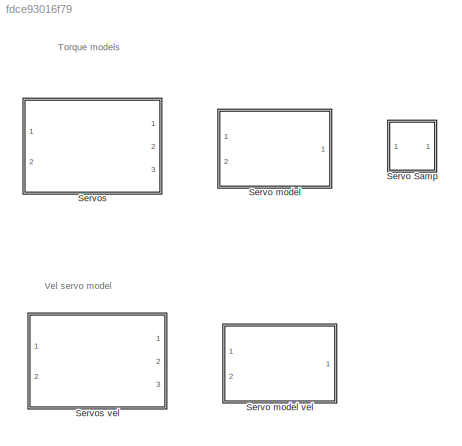
MODEL slx_fdce93016f79
KIND library
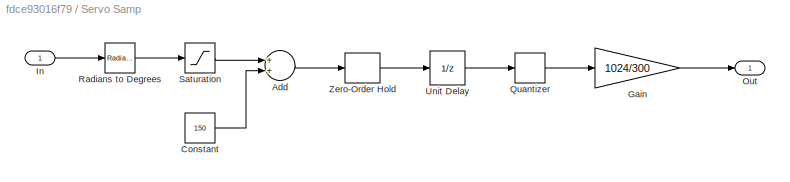
BLOCK [SubSystem] Servo Samp
  Ports = [1, 1]
  RequestExecContextInheritance = off
BLOCK [Sum] Servo Samp/Add
  InputSameDT = off
  OutDataTypeStr = Inherit: Inherit via internal rule
  Ports = [2, 1]
  SaturateOnIntegerOverflow = off
BLOCK [Constant] Servo Samp/Constant
  SampleTime = 0.001
  Value = 150
BLOCK [Gain] Servo Samp/Gain
  Gain = 1024/300
  OutDataTypeStr = Inherit: Inherit via internal rule
  ParamDataTypeStr = Inherit: Inherit via internal rule
  SaturateOnIntegerOverflow = off
BLOCK [Inport] Servo Samp/In
  IconDisplay = Port number
BLOCK [Outport] Servo Samp/Out
  IconDisplay = Port number
BLOCK [Quantizer] Servo Samp/Quantizer
  QuantizationInterval = 300/1024
BLOCK [Reference] Servo Samp/Radians to Degrees  REF=simulink_extras/Transformations/Radians
to Degrees
  Ports = [1, 1]
  SourceBlock = simulink_extras/Transformations/Radians\nto Degrees
  SourceType = RadiansToDegrees
BLOCK [Saturate] Servo Samp/Saturation
  InputPortMap = u0
  LowerLimit = -150
  Ports = [1, 1]
  UpperLimit = 150
BLOCK [UnitDelay] Servo Samp/Unit Delay
  InitialCondition = 150
  InputProcessing = Elements as channels (sample based)
  SampleTime = -1
BLOCK [ZeroOrderHold] Servo Samp/Zero-Order Hold
  SampleTime = 0.001
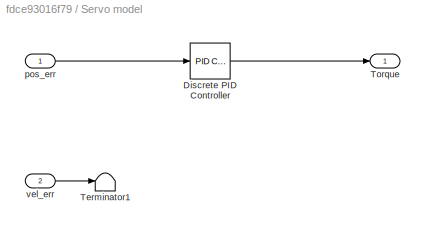
BLOCK [SubSystem] Servo model
  Ports = [2, 1]
  RequestExecContextInheritance = off
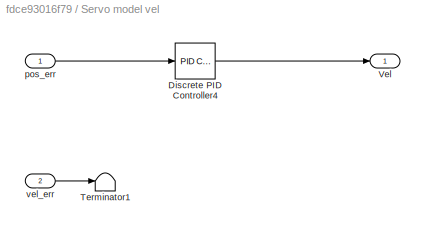
BLOCK [SubSystem] Servo model vel
  Ports = [2, 1]
  RequestExecContextInheritance = off
BLOCK [Reference] Servo model vel/Discrete PID Controller4  REF=simulink/Continuous/PID Controller
  AntiWindupMode = clamping
  Controller = PID
  D = D
  DOutDataTypeStr = Inherit: Inherit via internal rule
  DOutMax = []
  DOutMin = []
  DParamDataTypeStr = Inherit: Inherit via internal rule
  DParamMax = []
  DParamMin = []
  DifferentiatorICPrevScaledInput = 0
  DifferentiatorOutDataTypeStr = Inherit: Inherit via internal rule
  DifferentiatorOutMax = []
  DifferentiatorOutMin = []
  ExternalReset = none
  FilterContinuousStateAttributes = ''
  FilterMethod = Forward Euler
  FilterOutDataTypeStr = Inherit: Inherit via internal rule
  FilterOutMax = []
  FilterOutMin = []
  FilterRTWStateStorageClass = Auto
  FilterStateMustResolveToSignalObject = off
  Form = Parallel
  I = I
  IOutDataTypeStr = Inherit: Inherit via internal rule
  IOutMax = []
  IOutMin = []
  IParamDataTypeStr = Inherit: Inherit via internal rule
  IParamMax = []
  IParamMin = []
  IgnoreLimit = on
  InitialConditionForFilter = 0
  InitialConditionForIntegrator = 0
  InitialConditionSource = internal
  IntegratorContinuousStateAttributes = ''
  IntegratorMethod = Forward Euler
  IntegratorOutDataTypeStr = Inherit: Inherit via internal rule
  IntegratorOutMax = []
  IntegratorOutMin = []
  IntegratorRTWStateStorageClass = Auto
  IntegratorStateMustResolveToSignalObject = off
  Kb = 1
  KbOutDataTypeStr = Inherit: Inherit via internal rule
  KbOutMax = []
  KbOutMin = []
  KbParamDataTypeStr = Inherit: Inherit via internal rule
  KbParamMax = []
  KbParamMin = []
  Kt = 1
  KtOutDataTypeStr = Inherit: Inherit via internal rule
  KtOutMax = []
  KtOutMin = []
  KtParamDataTypeStr = Inherit: Inherit via internal rule
  KtParamMax = []
  KtParamMin = []
  LimitOutput = on
  LinearizeAsGain = off
  LockScale = off
  LowerSaturationLimit = -satvel
  N = N
  NOutDataTypeStr = Inherit: Inherit via internal rule
  NOutMax = []
  NOutMin = []
  NParamDataTypeStr = Inherit: Inherit via internal rule
  NParamMax = []
  NParamMin = []
  P = P
  POutDataTypeStr = Inherit: Inherit via internal rule
  POutMax = []
  POutMin = []
  PParamDataTypeStr = Inherit: Inherit via internal rule
  PParamMax = []
  PParamMin = []
  Ports = [1, 1]
  RndMeth = Floor
  SampleTime = 0.01
  SaturateOnIntegerOverflow = off
  SaturationOutDataTypeStr = Inherit: Same as input
  SaturationOutMax = []
  SaturationOutMin = []
  SourceBlock = simulink/Continuous/PID Controller
  SourceType = PID 1dof
  SumAccumDataTypeStr = Inherit: Inherit via internal rule
  SumDAccumDataTypeStr = Inherit: Inherit via internal rule
  SumDOutDataTypeStr = Inherit: Inherit via internal rule
  SumDOutMax = []
  SumDOutMin = []
  SumI1AccumDataTypeStr = Inherit: Inherit via internal rule
  SumI1OutDataTypeStr = Inherit: Inherit via internal rule
  SumI1OutMax = []
  SumI1OutMin = []
  SumI2AccumDataTypeStr = Inherit: Inherit via internal rule
  SumI2OutDataTypeStr = Inherit: Inherit via internal rule
  SumI2OutMax = []
  SumI2OutMin = []
  SumI3AccumDataTypeStr = Inherit: Inherit via internal rule
  SumI3OutDataTypeStr = Inherit: Inherit via internal rule
  SumI3OutMax = []
  SumI3OutMin = []
  SumOutDataTypeStr = Inherit: Inherit via internal rule
  SumOutMax = []
  SumOutMin = []
  TimeDomain = Discrete-time
  TrackingMode = off
  UpperSaturationLimit = satvel
  UseFilter = on
  ZeroCross = on
BLOCK [Terminator] Servo model vel/Terminator1
BLOCK [Outport] Servo model vel/Vel
  IconDisplay = Port number
BLOCK [Inport] Servo model vel/pos_err
  IconDisplay = Port number
  SamplingMode = Sample based
BLOCK [Inport] Servo model vel/vel_err
  IconDisplay = Port number
  Port = 2
BLOCK [Reference] Servo model/Discrete PID Controller  REF=simulink/Continuous/PID Controller
  AntiWindupMode = clamping
  Controller = PID
  D = -0.000158697423692473
  DOutDataTypeStr = Inherit: Inherit via internal rule
  DOutMax = []
  DOutMin = []
  DParamDataTypeStr = Inherit: Inherit via internal rule
  DParamMax = []
  DParamMin = []
  DifferentiatorICPrevScaledInput = 0
  DifferentiatorOutDataTypeStr = Inherit: Inherit via internal rule
  DifferentiatorOutMax = []
  DifferentiatorOutMin = []
  ExternalReset = none
  FilterContinuousStateAttributes = ''
  FilterMethod = Forward Euler
  FilterOutDataTypeStr = Inherit: Inherit via internal rule
  FilterOutMax = []
  FilterOutMin = []
  FilterRTWStateStorageClass = Auto
  FilterStateMustResolveToSignalObject = off
  Form = Parallel
  I = 0.00483915491408406
  IOutDataTypeStr = Inherit: Inherit via internal rule
  IOutMax = []
  IOutMin = []
  IParamDataTypeStr = Inherit: Inherit via internal rule
  IParamMax = []
  IParamMin = []
  IgnoreLimit = on
  InitialConditionForFilter = 0
  InitialConditionForIntegrator = 0
  InitialConditionSource = internal
  IntegratorContinuousStateAttributes = ''
  IntegratorMethod = Backward Euler
  IntegratorOutDataTypeStr = Inherit: Inherit via internal rule
  IntegratorOutMax = []
  IntegratorOutMin = []
  IntegratorRTWStateStorageClass = Auto
  IntegratorStateMustResolveToSignalObject = off
  Kb = 1
  KbOutDataTypeStr = Inherit: Inherit via internal rule
  KbOutMax = []
  KbOutMin = []
  KbParamDataTypeStr = Inherit: Inherit via internal rule
  KbParamMax = []
  KbParamMin = []
  Kt = 1
  KtOutDataTypeStr = Inherit: Inherit via internal rule
  KtOutMax = []
  KtOutMin = []
  KtParamDataTypeStr = Inherit: Inherit via internal rule
  KtParamMax = []
  KtParamMin = []
  LimitOutput = off
  LinearizeAsGain = off
  LockScale = off
  LowerSaturationLimit = -1.5
  N = 11.6663153258342
  NOutDataTypeStr = Inherit: Inherit via internal rule
  NOutMax = []
  NOutMin = []
  NParamDataTypeStr = Inherit: Inherit via internal rule
  NParamMax = []
  NParamMin = []
  P = 0.00413190191601698
  POutDataTypeStr = Inherit: Inherit via internal rule
  POutMax = []
  POutMin = []
  PParamDataTypeStr = Inherit: Inherit via internal rule
  PParamMax = []
  PParamMin = []
  Ports = [1, 1]
  RndMeth = Floor
  SampleTime = 0.001
  SaturateOnIntegerOverflow = off
  SaturationOutDataTypeStr = Inherit: Same as input
  SaturationOutMax = []
  SaturationOutMin = []
  SourceBlock = simulink/Continuous/PID Controller
  SourceType = PID 1dof
  SumAccumDataTypeStr = Inherit: Inherit via internal rule
  SumDAccumDataTypeStr = Inherit: Inherit via internal rule
  SumDOutDataTypeStr = Inherit: Inherit via internal rule
  SumDOutMax = []
  SumDOutMin = []
  SumI1AccumDataTypeStr = Inherit: Inherit via internal rule
  SumI1OutDataTypeStr = Inherit: Inherit via internal rule
  SumI1OutMax = []
  SumI1OutMin = []
  SumI2AccumDataTypeStr = Inherit: Inherit via internal rule
  SumI2OutDataTypeStr = Inherit: Inherit via internal rule
  SumI2OutMax = []
  SumI2OutMin = []
  SumI3AccumDataTypeStr = Inherit: Inherit via internal rule
  SumI3OutDataTypeStr = Inherit: Inherit via internal rule
  SumI3OutMax = []
  SumI3OutMin = []
  SumOutDataTypeStr = Inherit: Inherit via internal rule
  SumOutMax = []
  SumOutMin = []
  TimeDomain = Discrete-time
  TrackingMode = off
  UpperSaturationLimit = 1.5
  UseFilter = on
  ZeroCross = on
BLOCK [Terminator] Servo model/Terminator1
BLOCK [Outport] Servo model/Torque
  IconDisplay = Port number
BLOCK [Inport] Servo model/pos_err
  IconDisplay = Port number
  SamplingMode = Sample based
BLOCK [Inport] Servo model/vel_err
  IconDisplay = Port number
  Port = 2
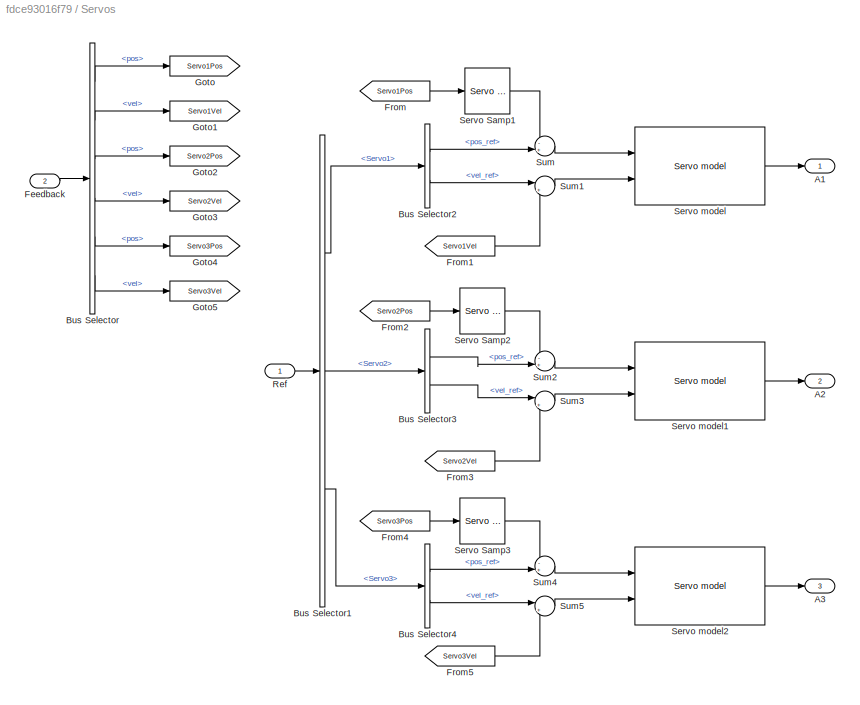
BLOCK [SubSystem] Servos
  Ports = [2, 3]
  RequestExecContextInheritance = off
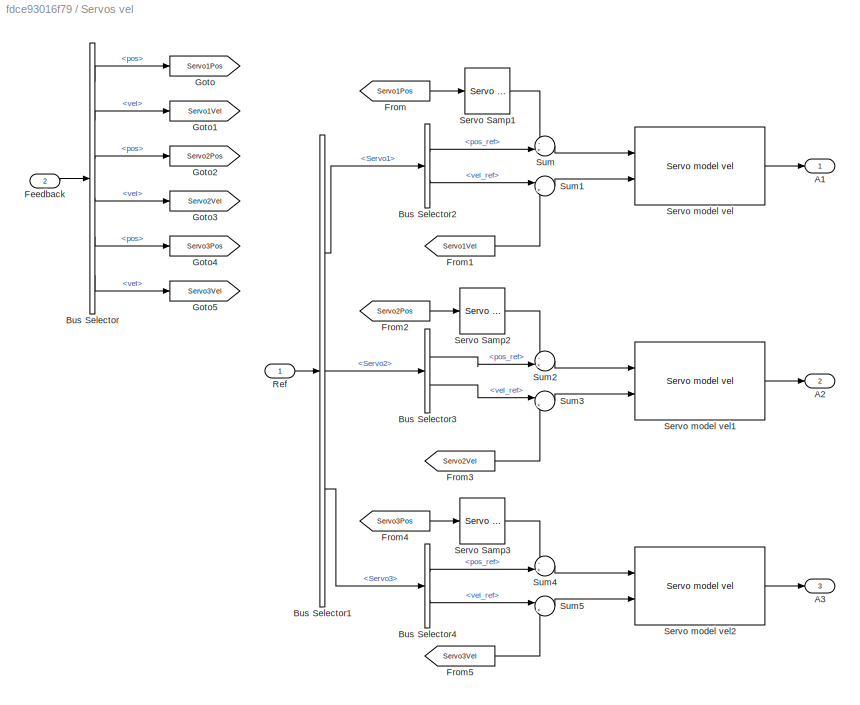
BLOCK [SubSystem] Servos vel
  Ports = [2, 3]
  RequestExecContextInheritance = off
BLOCK [Outport] Servos vel/A1
  IconDisplay = Port number
BLOCK [Outport] Servos vel/A2
  IconDisplay = Port number
  Port = 2
BLOCK [Outport] Servos vel/A3
  IconDisplay = Port number
  Port = 3
BLOCK [BusSelector] Servos vel/Bus Selector
  OutputSignals = Servo1.pos,Servo1.vel,Servo2.pos,Servo2.vel,Servo3.pos,Servo3.vel
  Ports = [1, 6]
BLOCK [BusSelector] Servos vel/Bus Selector1
  OutputSignals = Servo1,Servo2,Servo3
  Ports = [1, 3]
BLOCK [BusSelector] Servos vel/Bus Selector2
  OutputSignals = pos_ref,vel_ref
  Ports = [1, 2]
BLOCK [BusSelector] Servos vel/Bus Selector3
  OutputSignals = pos_ref,vel_ref
  Ports = [1, 2]
BLOCK [BusSelector] Servos vel/Bus Selector4
  OutputSignals = pos_ref,vel_ref
  Ports = [1, 2]
BLOCK [Inport] Servos vel/Feedback
  IconDisplay = Port number
  OutDataTypeStr = Bus: Leg_mes
  Port = 2
  PortDimensions = 3
BLOCK [From] Servos vel/From
  GotoTag = Servo1Pos
BLOCK [From] Servos vel/From1
  GotoTag = Servo1Vel
BLOCK [From] Servos vel/From2
  GotoTag = Servo2Pos
BLOCK [From] Servos vel/From3
  GotoTag = Servo2Vel
BLOCK [From] Servos vel/From4
  GotoTag = Servo3Pos
BLOCK [From] Servos vel/From5
  GotoTag = Servo3Vel
BLOCK [Goto] Servos vel/Goto
  GotoTag = Servo1Pos
BLOCK [Goto] Servos vel/Goto1
  GotoTag = Servo1Vel
BLOCK [Goto] Servos vel/Goto2
  GotoTag = Servo2Pos
BLOCK [Goto] Servos vel/Goto3
  GotoTag = Servo2Vel
BLOCK [Goto] Servos vel/Goto4
  GotoTag = Servo3Pos
BLOCK [Goto] Servos vel/Goto5
  GotoTag = Servo3Vel
BLOCK [Inport] Servos vel/Ref
  IconDisplay = Port number
  OutDataTypeStr = Bus: Leg_ref
BLOCK [Reference] Servos vel/Servo Samp1  REF=ServoModel/Servo Samp
  Ports = [1, 1]
  SourceBlock = ServoModel/Servo Samp
  SourceType = SubSystem
BLOCK [Reference] Servos vel/Servo Samp2  REF=ServoModel/Servo Samp
  Ports = [1, 1]
  SourceBlock = ServoModel/Servo Samp
  SourceType = SubSystem
BLOCK [Reference] Servos vel/Servo Samp3  REF=ServoModel/Servo Samp
  Ports = [1, 1]
  SourceBlock = ServoModel/Servo Samp
  SourceType = SubSystem
BLOCK [Reference] Servos vel/Servo model vel  REF=ServoModel/Servo model vel
  Ports = [2, 1]
  SourceBlock = ServoModel/Servo model vel
  SourceType = SubSystem
BLOCK [Reference] Servos vel/Servo model vel1  REF=ServoModel/Servo model vel
  Ports = [2, 1]
  SourceBlock = ServoModel/Servo model vel
  SourceType = SubSystem
BLOCK [Reference] Servos vel/Servo model vel2  REF=ServoModel/Servo model vel
  Ports = [2, 1]
  SourceBlock = ServoModel/Servo model vel
  SourceType = SubSystem
BLOCK [Sum] Servos vel/Sum
  IconShape = round
  InputSameDT = off
  Inputs = -+|
  OutDataTypeStr = Inherit: Inherit via internal rule
  Ports = [2, 1]
  SaturateOnIntegerOverflow = off
BLOCK [Sum] Servos vel/Sum1
  IconShape = round
  InputSameDT = off
  Inputs = |+-
  OutDataTypeStr = Inherit: Inherit via internal rule
  Ports = [2, 1]
  SaturateOnIntegerOverflow = off
BLOCK [Sum] Servos vel/Sum2
  IconShape = round
  InputSameDT = off
  Inputs = -+|
  OutDataTypeStr = Inherit: Inherit via internal rule
  Ports = [2, 1]
  SaturateOnIntegerOverflow = off
BLOCK [Sum] Servos vel/Sum3
  IconShape = round
  InputSameDT = off
  Inputs = |+-
  OutDataTypeStr = Inherit: Inherit via internal rule
  Ports = [2, 1]
  SaturateOnIntegerOverflow = off
BLOCK [Sum] Servos vel/Sum4
  IconShape = round
  InputSameDT = off
  Inputs = -+|
  OutDataTypeStr = Inherit: Inherit via internal rule
  Ports = [2, 1]
  SaturateOnIntegerOverflow = off
BLOCK [Sum] Servos vel/Sum5
  IconShape = round
  InputSameDT = off
  Inputs = |+-
  OutDataTypeStr = Inherit: Inherit via internal rule
  Ports = [2, 1]
  SaturateOnIntegerOverflow = off
BLOCK [Outport] Servos/A1
  IconDisplay = Port number
BLOCK [Outport] Servos/A2
  IconDisplay = Port number
  Port = 2
BLOCK [Outport] Servos/A3
  IconDisplay = Port number
  Port = 3
BLOCK [BusSelector] Servos/Bus Selector
  OutputSignals = Servo1.pos,Servo1.vel,Servo2.pos,Servo2.vel,Servo3.pos,Servo3.vel
  Ports = [1, 6]
BLOCK [BusSelector] Servos/Bus Selector1
  OutputSignals = Servo1,Servo2,Servo3
  Ports = [1, 3]
BLOCK [BusSelector] Servos/Bus Selector2
  OutputSignals = pos_ref,vel_ref
  Ports = [1, 2]
BLOCK [BusSelector] Servos/Bus Selector3
  OutputSignals = pos_ref,vel_ref
  Ports = [1, 2]
BLOCK [BusSelector] Servos/Bus Selector4
  OutputSignals = pos_ref,vel_ref
  Ports = [1, 2]
BLOCK [Inport] Servos/Feedback
  IconDisplay = Port number
  OutDataTypeStr = Bus: Leg_mes
  Port = 2
  PortDimensions = 3
BLOCK [From] Servos/From
  GotoTag = Servo1Pos
BLOCK [From] Servos/From1
  GotoTag = Servo1Vel
BLOCK [From] Servos/From2
  GotoTag = Servo2Pos
BLOCK [From] Servos/From3
  GotoTag = Servo2Vel
BLOCK [From] Servos/From4
  GotoTag = Servo3Pos
BLOCK [From] Servos/From5
  GotoTag = Servo3Vel
BLOCK [Goto] Servos/Goto
  GotoTag = Servo1Pos
BLOCK [Goto] Servos/Goto1
  GotoTag = Servo1Vel
BLOCK [Goto] Servos/Goto2
  GotoTag = Servo2Pos
BLOCK [Goto] Servos/Goto3
  GotoTag = Servo2Vel
BLOCK [Goto] Servos/Goto4
  GotoTag = Servo3Pos
BLOCK [Goto] Servos/Goto5
  GotoTag = Servo3Vel
BLOCK [Inport] Servos/Ref
  IconDisplay = Port number
  OutDataTypeStr = Bus: Leg_ref
BLOCK [Reference] Servos/Servo Samp1  REF=ServoModel/Servo Samp
  Ports = [1, 1]
  SourceBlock = ServoModel/Servo Samp
  SourceType = SubSystem
BLOCK [Reference] Servos/Servo Samp2  REF=ServoModel/Servo Samp
  Ports = [1, 1]
  SourceBlock = ServoModel/Servo Samp
  SourceType = SubSystem
BLOCK [Reference] Servos/Servo Samp3  REF=ServoModel/Servo Samp
  Ports = [1, 1]
  SourceBlock = ServoModel/Servo Samp
  SourceType = SubSystem
BLOCK [Reference] Servos/Servo model  REF=ServoModel/Servo model
  Ports = [2, 1]
  SourceBlock = ServoModel/Servo model
  SourceType = SubSystem
BLOCK [Reference] Servos/Servo model1  REF=ServoModel/Servo model
  Ports = [2, 1]
  SourceBlock = ServoModel/Servo model
  SourceType = SubSystem
BLOCK [Reference] Servos/Servo model2  REF=ServoModel/Servo model
  Ports = [2, 1]
  SourceBlock = ServoModel/Servo model
  SourceType = SubSystem
BLOCK [Sum] Servos/Sum
  IconShape = round
  InputSameDT = off
  Inputs = -+|
  OutDataTypeStr = Inherit: Inherit via internal rule
  Ports = [2, 1]
  SaturateOnIntegerOverflow = off
BLOCK [Sum] Servos/Sum1
  IconShape = round
  InputSameDT = off
  Inputs = |+-
  OutDataTypeStr = Inherit: Inherit via internal rule
  Ports = [2, 1]
  SaturateOnIntegerOverflow = off
BLOCK [Sum] Servos/Sum2
  IconShape = round
  InputSameDT = off
  Inputs = -+|
  OutDataTypeStr = Inherit: Inherit via internal rule
  Ports = [2, 1]
  SaturateOnIntegerOverflow = off
BLOCK [Sum] Servos/Sum3
  IconShape = round
  InputSameDT = off
  Inputs = |+-
  OutDataTypeStr = Inherit: Inherit via internal rule
  Ports = [2, 1]
  SaturateOnIntegerOverflow = off
BLOCK [Sum] Servos/Sum4
  IconShape = round
  InputSameDT = off
  Inputs = -+|
  OutDataTypeStr = Inherit: Inherit via internal rule
  Ports = [2, 1]
  SaturateOnIntegerOverflow = off
BLOCK [Sum] Servos/Sum5
  IconShape = round
  InputSameDT = off
  Inputs = |+-
  OutDataTypeStr = Inherit: Inherit via internal rule
  Ports = [2, 1]
  SaturateOnIntegerOverflow = off
ANNOTATION (root): Torque models
ANNOTATION (root): Vel servo model
LINE Servo Samp/Add:1 -> Servo Samp/Zero-Order Hold:1
LINE Servo Samp/Constant:1 -> Servo Samp/Add:2
LINE Servo Samp/Gain:1 -> Servo Samp/Out:1
LINE Servo Samp/In:1 -> Servo Samp/Radians to Degrees:1
LINE Servo Samp/Quantizer:1 -> Servo Samp/Gain:1
LINE Servo Samp/Radians to Degrees:1 -> Servo Samp/Saturation:1
LINE Servo Samp/Saturation:1 -> Servo Samp/Add:1
LINE Servo Samp/Unit Delay:1 -> Servo Samp/Quantizer:1
LINE Servo Samp/Zero-Order Hold:1 -> Servo Samp/Unit Delay:1
LINE Servo model vel/Discrete PID Controller4:1 -> Servo model vel/Vel:1
LINE Servo model vel/pos_err:1 -> Servo model vel/Discrete PID Controller4:1
LINE Servo model vel/vel_err:1 -> Servo model vel/Terminator1:1
LINE Servo model/Discrete PID Controller:1 -> Servo model/Torque:1
LINE Servo model/pos_err:1 -> Servo model/Discrete PID Controller:1
LINE Servo model/vel_err:1 -> Servo model/Terminator1:1
LINE Servos vel/Bus Selector1:1 -> Servos vel/Bus Selector2:1
LINE Servos vel/Bus Selector1:2 -> Servos vel/Bus Selector3:1
LINE Servos vel/Bus Selector1:3 -> Servos vel/Bus Selector4:1
LINE Servos vel/Bus Selector2:1 -> Servos vel/Sum:2
LINE Servos vel/Bus Selector2:2 -> Servos vel/Sum1:1
LINE Servos vel/Bus Selector3:1 -> Servos vel/Sum2:2
LINE Servos vel/Bus Selector3:2 -> Servos vel/Sum3:1
LINE Servos vel/Bus Selector4:1 -> Servos vel/Sum4:2
LINE Servos vel/Bus Selector4:2 -> Servos vel/Sum5:1
LINE Servos vel/Bus Selector:1 -> Servos vel/Goto:1
LINE Servos vel/Bus Selector:2 -> Servos vel/Goto1:1
LINE Servos vel/Bus Selector:3 -> Servos vel/Goto2:1
LINE Servos vel/Bus Selector:4 -> Servos vel/Goto3:1
LINE Servos vel/Bus Selector:5 -> Servos vel/Goto4:1
LINE Servos vel/Bus Selector:6 -> Servos vel/Goto5:1
LINE Servos vel/Feedback:1 -> Servos vel/Bus Selector:1
LINE Servos vel/From1:1 -> Servos vel/Sum1:2
LINE Servos vel/From2:1 -> Servos vel/Servo Samp2:1
LINE Servos vel/From3:1 -> Servos vel/Sum3:2
LINE Servos vel/From4:1 -> Servos vel/Servo Samp3:1
LINE Servos vel/From5:1 -> Servos vel/Sum5:2
LINE Servos vel/From:1 -> Servos vel/Servo Samp1:1
LINE Servos vel/Ref:1 -> Servos vel/Bus Selector1:1
LINE Servos vel/Servo Samp1:1 -> Servos vel/Sum:1
LINE Servos vel/Servo Samp2:1 -> Servos vel/Sum2:1
LINE Servos vel/Servo Samp3:1 -> Servos vel/Sum4:1
LINE Servos vel/Servo model vel1:1 -> Servos vel/A2:1
LINE Servos vel/Servo model vel2:1 -> Servos vel/A3:1
LINE Servos vel/Servo model vel:1 -> Servos vel/A1:1
LINE Servos vel/Sum1:1 -> Servos vel/Servo model vel:2
LINE Servos vel/Sum2:1 -> Servos vel/Servo model vel1:1
LINE Servos vel/Sum3:1 -> Servos vel/Servo model vel1:2
LINE Servos vel/Sum4:1 -> Servos vel/Servo model vel2:1
LINE Servos vel/Sum5:1 -> Servos vel/Servo model vel2:2
LINE Servos vel/Sum:1 -> Servos vel/Servo model vel:1
LINE Servos/Bus Selector1:1 -> Servos/Bus Selector2:1
LINE Servos/Bus Selector1:2 -> Servos/Bus Selector3:1
LINE Servos/Bus Selector1:3 -> Servos/Bus Selector4:1
LINE Servos/Bus Selector2:1 -> Servos/Sum:2
LINE Servos/Bus Selector2:2 -> Servos/Sum1:1
LINE Servos/Bus Selector3:1 -> Servos/Sum2:2
LINE Servos/Bus Selector3:2 -> Servos/Sum3:1
LINE Servos/Bus Selector4:1 -> Servos/Sum4:2
LINE Servos/Bus Selector4:2 -> Servos/Sum5:1
LINE Servos/Bus Selector:1 -> Servos/Goto:1
LINE Servos/Bus Selector:2 -> Servos/Goto1:1
LINE Servos/Bus Selector:3 -> Servos/Goto2:1
LINE Servos/Bus Selector:4 -> Servos/Goto3:1
LINE Servos/Bus Selector:5 -> Servos/Goto4:1
LINE Servos/Bus Selector:6 -> Servos/Goto5:1
LINE Servos/Feedback:1 -> Servos/Bus Selector:1
LINE Servos/From1:1 -> Servos/Sum1:2
LINE Servos/From2:1 -> Servos/Servo Samp2:1
LINE Servos/From3:1 -> Servos/Sum3:2
LINE Servos/From4:1 -> Servos/Servo Samp3:1
LINE Servos/From5:1 -> Servos/Sum5:2
LINE Servos/From:1 -> Servos/Servo Samp1:1
LINE Servos/Ref:1 -> Servos/Bus Selector1:1
LINE Servos/Servo Samp1:1 -> Servos/Sum:1
LINE Servos/Servo Samp2:1 -> Servos/Sum2:1
LINE Servos/Servo Samp3:1 -> Servos/Sum4:1
LINE Servos/Servo model1:1 -> Servos/A2:1
LINE Servos/Servo model2:1 -> Servos/A3:1
LINE Servos/Servo model:1 -> Servos/A1:1
LINE Servos/Sum1:1 -> Servos/Servo model:2
LINE Servos/Sum2:1 -> Servos/Servo model1:1
LINE Servos/Sum3:1 -> Servos/Servo model1:2
LINE Servos/Sum4:1 -> Servos/Servo model2:1
LINE Servos/Sum5:1 -> Servos/Servo model2:2
LINE Servos/Sum:1 -> Servos/Servo model:1
